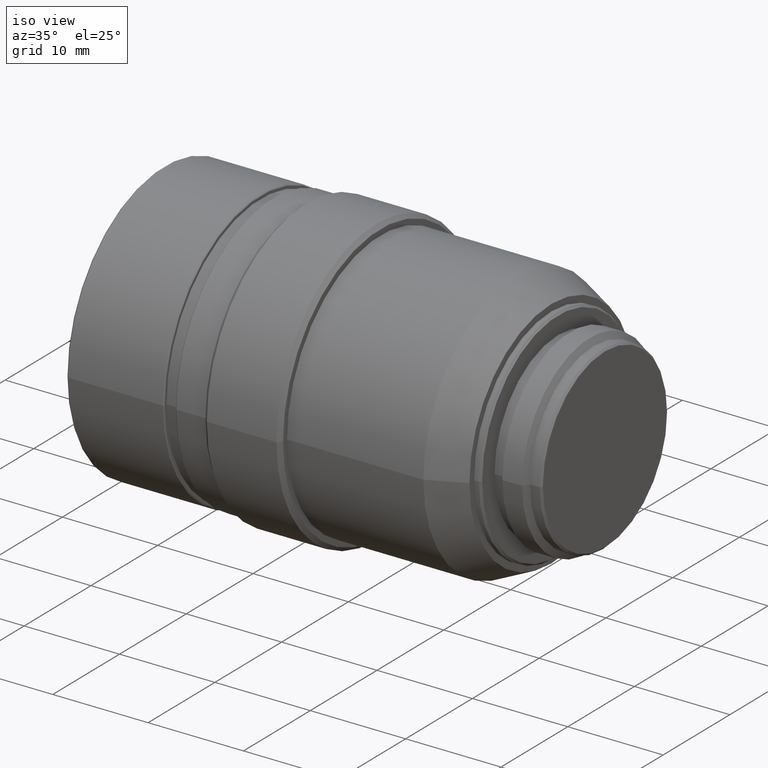
[diagram: clean part render]
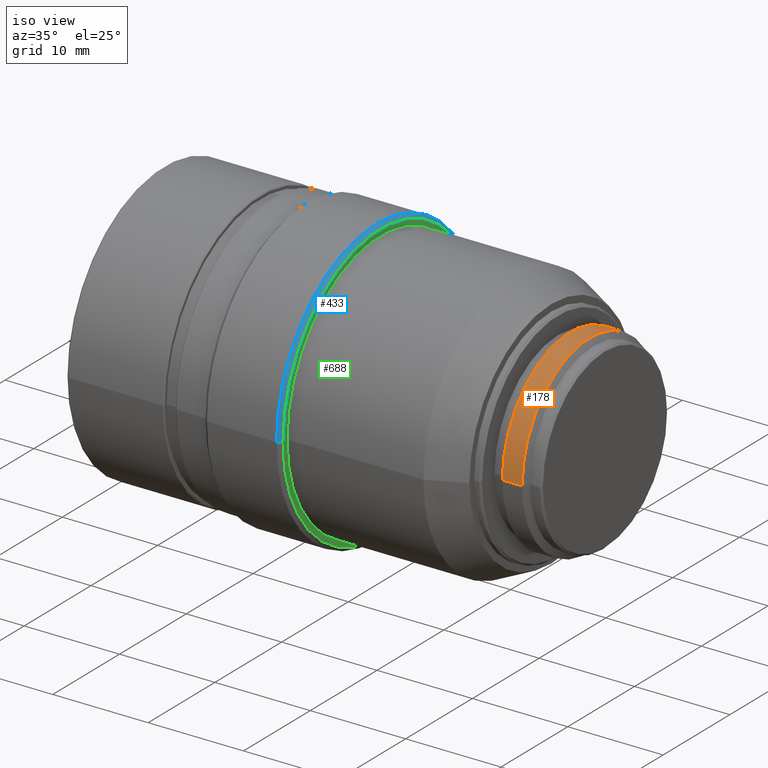
[diagram: same view with three faces highlighted in distinct colors, each labeled with its STEP entity id]
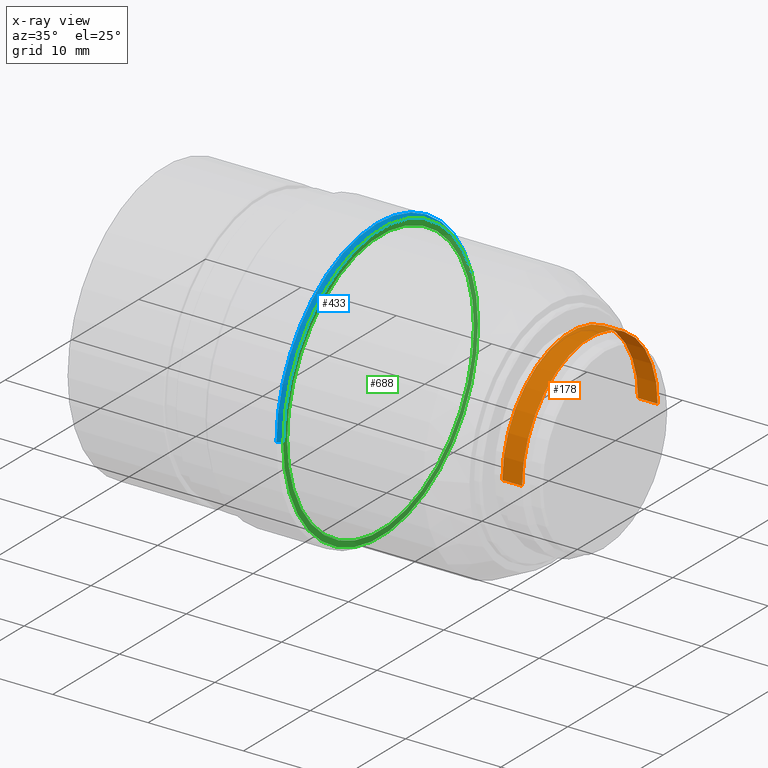
[diagram: x-ray of the same camera — body ghosted, the three highlighted faces saturated]
A machine part, iso view with three faces highlighted in distinct colors.
The next image is the same camera in x-ray (body ghosted, the three faces saturated) — at least one of them is partly hidden behind the body in this view.
Their STEP definitions:

[orange] entity #178 — the highlighted cylindrical surface (partial cylindrical patch) has radius 10.16 mm, axis along (1, 0, 0).
#68 = ORIENTED_EDGE ( 'NONE', *, *, #594, .T. ) ;
#100 = FACE_OUTER_BOUND ( 'NONE', #801, .T. ) ;
#130 = AXIS2_PLACEMENT_3D ( 'NONE', #976, #1424, #970 ) ;
#134 = CARTESIAN_POINT ( 'NONE',  ( 47.17518024327029735, 10.16000000000000014, 0.000000000000000000 ) ) ;
#172 = ORIENTED_EDGE ( 'NONE', *, *, #1164, .F. ) ;
#178 = ADVANCED_FACE ( 'NONE', ( #100 ), #778, .T. ) ;
#197 = ORIENTED_EDGE ( 'NONE', *, *, #1069, .F. ) ;
#205 = CARTESIAN_POINT ( 'NONE',  ( 48.20856282233479817, -10.16000000000000014, 0.000000000000000000 ) ) ;
#227 = DIRECTION ( 'NONE',  ( 1.000000000000000000, -1.250955520704399823E-16, 0.000000000000000000 ) ) ;
#260 = DIRECTION ( 'NONE',  ( 1.000000000000000000, -1.250955520704399823E-16, 0.000000000000000000 ) ) ;
#279 = VECTOR ( 'NONE', #1278, 1000.000000000000000 ) ;
#373 = VECTOR ( 'NONE', #903, 1000.000000000000000 ) ;
#392 = AXIS2_PLACEMENT_3D ( 'NONE', #793, #227, #1135 ) ;
#594 = EDGE_CURVE ( 'NONE', #1023, #1231, #1148, .T. ) ;
#598 = AXIS2_PLACEMENT_3D ( 'NONE', #935, #260, #685 ) ;
#637 = VERTEX_POINT ( 'NONE', #205 ) ;
#685 = DIRECTION ( 'NONE',  ( 0.000000000000000000, -1.000000000000000000, 0.000000000000000000 ) ) ;
#773 = CIRCLE ( 'NONE', #130, 10.16000000000000014 ) ;
#778 = CYLINDRICAL_SURFACE ( 'NONE', #392, 10.16000000000000014 ) ;
#793 = CARTESIAN_POINT ( 'NONE',  ( 47.17518024327029735, -3.105567914663179739E-15, 0.000000000000000000 ) ) ;
#801 = EDGE_LOOP ( 'NONE', ( #850, #172, #197, #68 ) ) ;
#835 = LINE ( 'NONE', #1180, #279 ) ;
#850 = ORIENTED_EDGE ( 'NONE', *, *, #1369, .T. ) ;
#873 = CARTESIAN_POINT ( 'NONE',  ( 46.14179766420570417, 10.16000000000000014, 0.000000000000000000 ) ) ;
#903 = DIRECTION ( 'NONE',  ( 1.000000000000000000, -1.250955520704399823E-16, 0.000000000000000000 ) ) ;
#911 = LINE ( 'NONE', #134, #373 ) ;
#935 = CARTESIAN_POINT ( 'NONE',  ( 46.14179766420570417, -2.976296350435120029E-15, 0.000000000000000000 ) ) ;
#963 = CARTESIAN_POINT ( 'NONE',  ( 46.14179766420570417, -10.16000000000000014, 1.244241147933709878E-15 ) ) ;
#970 = DIRECTION ( 'NONE',  ( 0.000000000000000000, -1.000000000000000000, 0.000000000000000000 ) ) ;
#976 = CARTESIAN_POINT ( 'NONE',  ( 48.20856282233479817, -3.234839478891239843E-15, 0.000000000000000000 ) ) ;
#1023 = VERTEX_POINT ( 'NONE', #963 ) ;
#1046 = CARTESIAN_POINT ( 'NONE',  ( 48.20856282233479817, 10.16000000000000014, 1.244241147933709878E-15 ) ) ;
#1054 = VERTEX_POINT ( 'NONE', #1046 ) ;
#1069 = EDGE_CURVE ( 'NONE', #1023, #637, #835, .T. ) ;
#1135 = DIRECTION ( 'NONE',  ( 0.000000000000000000, 1.000000000000000000, 0.000000000000000000 ) ) ;
#1148 = CIRCLE ( 'NONE', #598, 10.16000000000000014 ) ;
#1164 = EDGE_CURVE ( 'NONE', #637, #1054, #773, .T. ) ;
#1180 = CARTESIAN_POINT ( 'NONE',  ( 47.17518024327029735, -10.16000000000000014, 1.244241147933709878E-15 ) ) ;
#1231 = VERTEX_POINT ( 'NONE', #873 ) ;
#1278 = DIRECTION ( 'NONE',  ( 1.000000000000000000, -1.250955520704399823E-16, 0.000000000000000000 ) ) ;
#1369 = EDGE_CURVE ( 'NONE', #1231, #1054, #911, .T. ) ;
#1424 = DIRECTION ( 'NONE',  ( 1.000000000000000000, -1.250955520704399823E-16, 0.000000000000000000 ) ) ;

[blue] entity #433 — the highlighted conical surface has half-angle 45 deg.
#56 = LINE ( 'NONE', #1305, #1198 ) ;
#63 = CONICAL_SURFACE ( 'NONE', #883, 15.00000000000000000, 0.7853981633974490562 ) ;
#216 = CIRCLE ( 'NONE', #1052, 14.59999999999999964 ) ;
#284 = CARTESIAN_POINT ( 'NONE',  ( 25.84961399999999898, 15.00000000000000000, 1.836970198721029983E-15 ) ) ;
#290 = LINE ( 'NONE', #758, #965 ) ;
#304 = AXIS2_PLACEMENT_3D ( 'NONE', #762, #1193, #1090 ) ;
#325 = EDGE_CURVE ( 'NONE', #672, #525, #216, .T. ) ;
#391 = ORIENTED_EDGE ( 'NONE', *, *, #633, .F. ) ;
#407 = DIRECTION ( 'NONE',  ( -0.7071067811865470176, -0.7071067811865480168, 0.000000000000000000 ) ) ;
#433 = ADVANCED_FACE ( 'NONE', ( #1002 ), #63, .T. ) ;
#435 = DIRECTION ( 'NONE',  ( -2.312964634635742957E-16, -1.000000000000000000, 0.000000000000000000 ) ) ;
#442 = ORIENTED_EDGE ( 'NONE', *, *, #1136, .T. ) ;
#525 = VERTEX_POINT ( 'NONE', #808 ) ;
#578 = CIRCLE ( 'NONE', #304, 15.00000000000000000 ) ;
#592 = VERTEX_POINT ( 'NONE', #914 ) ;
#633 = EDGE_CURVE ( 'NONE', #525, #1450, #56, .T. ) ;
#672 = VERTEX_POINT ( 'NONE', #998 ) ;
#758 = CARTESIAN_POINT ( 'NONE',  ( 25.84961399999999898, -15.00000000000000000, 0.000000000000000000 ) ) ;
#762 = CARTESIAN_POINT ( 'NONE',  ( 25.84961399999999898, -4.378344322465400242E-16, 0.000000000000000000 ) ) ;
#767 = DIRECTION ( 'NONE',  ( -0.7071067811865470176, 0.7071067811865480168, 8.659560562354939021E-17 ) ) ;
#808 = CARTESIAN_POINT ( 'NONE',  ( 26.24961400000000111, 14.59999999999999964, 1.787984326755140499E-15 ) ) ;
#883 = AXIS2_PLACEMENT_3D ( 'NONE', #1445, #1452, #435 ) ;
#914 = CARTESIAN_POINT ( 'NONE',  ( 25.84961399999999898, -15.00000000000000000, 0.000000000000000000 ) ) ;
#915 = DIRECTION ( 'NONE',  ( -2.376333528735352191E-16, -1.000000000000000000, 0.000000000000000000 ) ) ;
#927 = ORIENTED_EDGE ( 'NONE', *, *, #1115, .T. ) ;
#946 = DIRECTION ( 'NONE',  ( 1.000000000000000000, -1.250955520704399823E-16, 0.000000000000000000 ) ) ;
#965 = VECTOR ( 'NONE', #407, 1000.000000000000000 ) ;
#986 = ORIENTED_EDGE ( 'NONE', *, *, #325, .F. ) ;
#998 = CARTESIAN_POINT ( 'NONE',  ( 26.24961400000000111, -14.59999999999999964, 0.000000000000000000 ) ) ;
#1002 = FACE_OUTER_BOUND ( 'NONE', #1356, .T. ) ;
#1052 = AXIS2_PLACEMENT_3D ( 'NONE', #1371, #946, #915 ) ;
#1090 = DIRECTION ( 'NONE',  ( -2.312964634635742957E-16, -1.000000000000000000, 0.000000000000000000 ) ) ;
#1115 = EDGE_CURVE ( 'NONE', #672, #592, #290, .T. ) ;
#1136 = EDGE_CURVE ( 'NONE', #592, #1450, #578, .T. ) ;
#1193 = DIRECTION ( 'NONE',  ( 1.000000000000000000, -1.250955520704399823E-16, 0.000000000000000000 ) ) ;
#1198 = VECTOR ( 'NONE', #767, 1000.000000000000000 ) ;
#1305 = CARTESIAN_POINT ( 'NONE',  ( 25.84961399999999898, 15.00000000000000000, 1.836970198721029983E-15 ) ) ;
#1356 = EDGE_LOOP ( 'NONE', ( #927, #442, #391, #986 ) ) ;
#1371 = CARTESIAN_POINT ( 'NONE',  ( 26.24961400000000111, -4.878726530747159283E-16, 0.000000000000000000 ) ) ;
#1445 = CARTESIAN_POINT ( 'NONE',  ( 25.84961399999999898, -4.378344322465400242E-16, 0.000000000000000000 ) ) ;
#1450 = VERTEX_POINT ( 'NONE', #284 ) ;
#1452 = DIRECTION ( 'NONE',  ( -1.000000000000000000, 1.250955520704399823E-16, 0.000000000000000000 ) ) ;

[green] entity #688 — the highlighted planar face has unit normal (1, 0, 0).
#93 = DIRECTION ( 'NONE',  ( -2.478176394252581634E-16, -1.000000000000000000, 0.000000000000000000 ) ) ;
#99 = DIRECTION ( 'NONE',  ( -2.376333528735352191E-16, -1.000000000000000000, 0.000000000000000000 ) ) ;
#135 = ORIENTED_EDGE ( 'NONE', *, *, #719, .F. ) ;
#166 = DIRECTION ( 'NONE',  ( 1.000000000000000000, -1.250955520704399823E-16, 0.000000000000000000 ) ) ;
#196 = CARTESIAN_POINT ( 'NONE',  ( 26.24961400000000111, -4.878726530747150409E-16, 0.000000000000000000 ) ) ;
#202 = FACE_BOUND ( 'NONE', #556, .T. ) ;
#216 = CIRCLE ( 'NONE', #1052, 14.59999999999999964 ) ;
#217 = AXIS2_PLACEMENT_3D ( 'NONE', #539, #995, #99 ) ;
#278 = CARTESIAN_POINT ( 'NONE',  ( 26.24961400000000111, -14.30000000000000071, 0.000000000000000000 ) ) ;
#286 = CARTESIAN_POINT ( 'NONE',  ( 26.24961400000000111, -4.878726530747150409E-16, 0.000000000000000000 ) ) ;
#325 = EDGE_CURVE ( 'NONE', #672, #525, #216, .T. ) ;
#336 = VERTEX_POINT ( 'NONE', #1049 ) ;
#418 = AXIS2_PLACEMENT_3D ( 'NONE', #196, #1102, #93 ) ;
#428 = EDGE_CURVE ( 'NONE', #525, #672, #1099, .T. ) ;
#525 = VERTEX_POINT ( 'NONE', #808 ) ;
#539 = CARTESIAN_POINT ( 'NONE',  ( 26.24961400000000111, -4.878726530747159283E-16, 0.000000000000000000 ) ) ;
#556 = EDGE_LOOP ( 'NONE', ( #1419, #135 ) ) ;
#567 = VERTEX_POINT ( 'NONE', #921 ) ;
#612 = DIRECTION ( 'NONE',  ( -1.250955520704399823E-16, -1.000000000000000000, 0.000000000000000000 ) ) ;
#619 = DIRECTION ( 'NONE',  ( -2.478176394252581634E-16, -1.000000000000000000, 0.000000000000000000 ) ) ;
#672 = VERTEX_POINT ( 'NONE', #998 ) ;
#688 = ADVANCED_FACE ( 'NONE', ( #839, #202 ), #1292, .T. ) ;
#692 = ORIENTED_EDGE ( 'NONE', *, *, #428, .T. ) ;
#719 = EDGE_CURVE ( 'NONE', #567, #336, #1174, .T. ) ;
#724 = AXIS2_PLACEMENT_3D ( 'NONE', #286, #1189, #619 ) ;
#739 = EDGE_CURVE ( 'NONE', #336, #567, #1460, .T. ) ;
#746 = AXIS2_PLACEMENT_3D ( 'NONE', #278, #166, #612 ) ;
#808 = CARTESIAN_POINT ( 'NONE',  ( 26.24961400000000111, 14.59999999999999964, 1.787984326755140499E-15 ) ) ;
#839 = FACE_OUTER_BOUND ( 'NONE', #1239, .T. ) ;
#915 = DIRECTION ( 'NONE',  ( -2.376333528735352191E-16, -1.000000000000000000, 0.000000000000000000 ) ) ;
#921 = CARTESIAN_POINT ( 'NONE',  ( 26.24961400000000111, -14.00000000000000000, 1.714505518806289905E-15 ) ) ;
#946 = DIRECTION ( 'NONE',  ( 1.000000000000000000, -1.250955520704399823E-16, 0.000000000000000000 ) ) ;
#995 = DIRECTION ( 'NONE',  ( 1.000000000000000000, -1.250955520704399823E-16, 0.000000000000000000 ) ) ;
#998 = CARTESIAN_POINT ( 'NONE',  ( 26.24961400000000111, -14.59999999999999964, 0.000000000000000000 ) ) ;
#1049 = CARTESIAN_POINT ( 'NONE',  ( 26.24961400000000111, 14.00000000000000000, 0.000000000000000000 ) ) ;
#1052 = AXIS2_PLACEMENT_3D ( 'NONE', #1371, #946, #915 ) ;
#1099 = CIRCLE ( 'NONE', #217, 14.59999999999999964 ) ;
#1102 = DIRECTION ( 'NONE',  ( 1.000000000000000000, -1.250955520704399823E-16, 0.000000000000000000 ) ) ;
#1174 = CIRCLE ( 'NONE', #724, 14.00000000000000000 ) ;
#1189 = DIRECTION ( 'NONE',  ( 1.000000000000000000, -1.250955520704399823E-16, 0.000000000000000000 ) ) ;
#1191 = ORIENTED_EDGE ( 'NONE', *, *, #325, .T. ) ;
#1239 = EDGE_LOOP ( 'NONE', ( #692, #1191 ) ) ;
#1292 = PLANE ( 'NONE',  #746 ) ;
#1371 = CARTESIAN_POINT ( 'NONE',  ( 26.24961400000000111, -4.878726530747159283E-16, 0.000000000000000000 ) ) ;
#1419 = ORIENTED_EDGE ( 'NONE', *, *, #739, .F. ) ;
#1460 = CIRCLE ( 'NONE', #418, 14.00000000000000000 ) ;